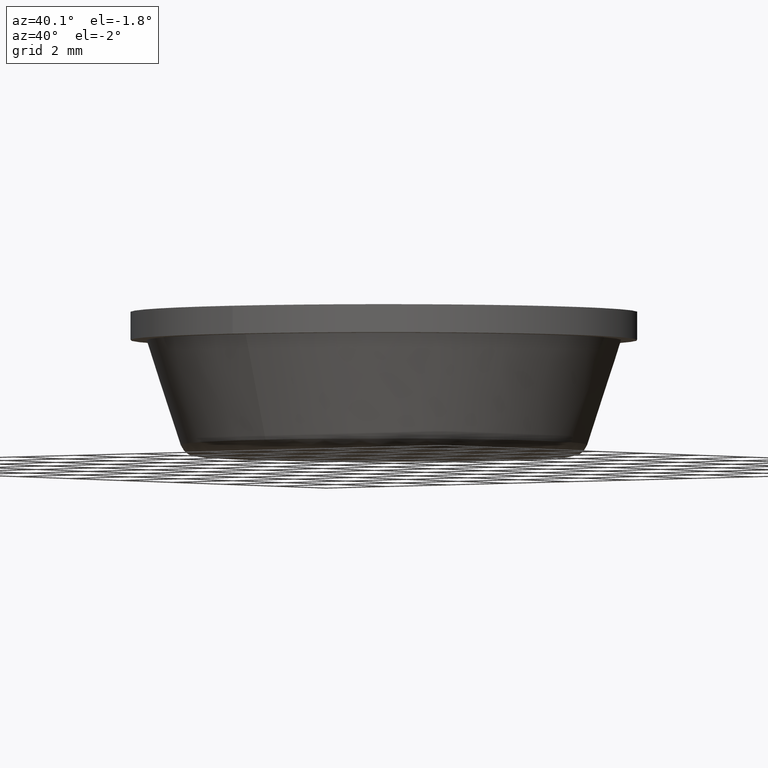
[diagram: clean part render]
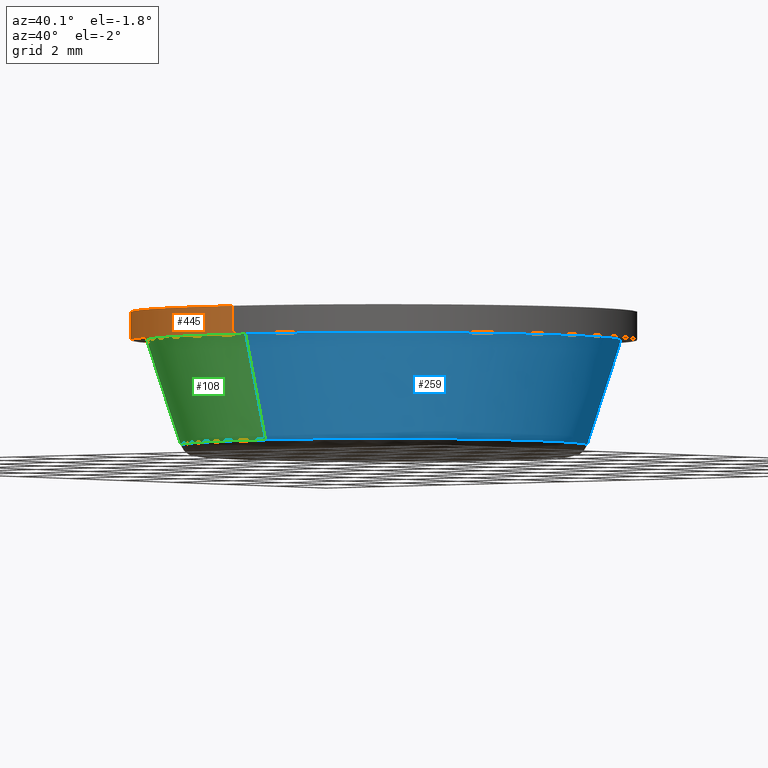
[diagram: same view with three faces highlighted in distinct colors, each labeled with its STEP entity id]
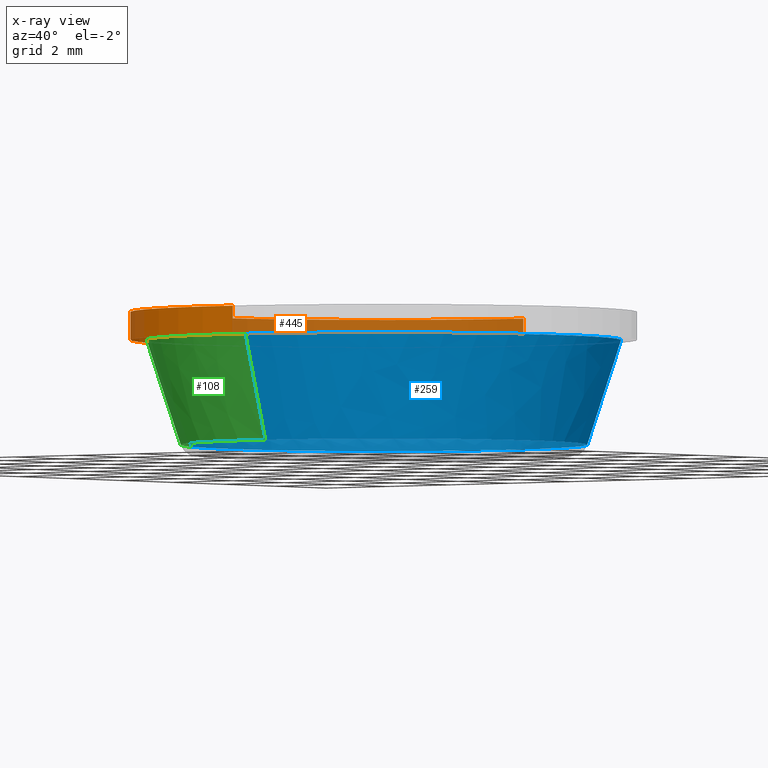
[diagram: x-ray of the same camera — body ghosted, the three highlighted faces saturated]
A machine part, auxiliary view with three faces highlighted in distinct colors.
The next image is the same camera in x-ray (body ghosted, the three faces saturated) — at least one of them is partly hidden behind the body in this view.
Their STEP definitions:

[orange] entity #445 — the highlighted face is a freeform B-spline surface patch.
#282=CARTESIAN_POINT('',(-0.749513374682920,6.305610969696359,2.900000000000056));
#283=VERTEX_POINT('',#282);
#301=CARTESIAN_POINT('',(-0.749513424211019,6.305610963809258,3.600000000000000));
#302=VERTEX_POINT('',#301);
#303=CARTESIAN_POINT('',(-0.749513424211019,6.305610963809258,3.600000000000000));
#304=CARTESIAN_POINT('',(-0.749513374682920,6.305610969696359,2.900000000000056));
#305=QUASI_UNIFORM_CURVE('',1,(#303,#304),.UNSPECIFIED.,.F.,.U.);
#306=EDGE_CURVE('',#302,#283,#305,.T.);
#325=CARTESIAN_POINT('',(0.387655985912206,-6.338156106990533,3.600000000000000));
#326=VERTEX_POINT('',#325);
#340=CARTESIAN_POINT('',(0.387655957948693,-6.338156108700835,2.900000000000037));
#341=VERTEX_POINT('',#340);
#342=CARTESIAN_POINT('',(0.387655985912206,-6.338156106990533,3.600000000000000));
#343=CARTESIAN_POINT('',(0.387655957948693,-6.338156108700835,2.900000000000037));
#344=QUASI_UNIFORM_CURVE('',1,(#342,#343),.UNSPECIFIED.,.F.,.U.);
#345=EDGE_CURVE('',#326,#341,#344,.T.);
#363=CARTESIAN_POINT('',(0.387658226046342,-6.338155969978853,3.617500000000001));
#364=CARTESIAN_POINT('',(-5.950497743932512,-6.725814196025195,3.617500000000000));
#365=CARTESIAN_POINT('',(-6.338155969978853,-0.387658226046342,3.617500000000001));
#366=CARTESIAN_POINT('',(-6.704242349251549,5.597801166830830,3.617500000000001));
#367=CARTESIAN_POINT('',(-0.749517390070416,6.305610492409281,3.617500000000001));
#368=CARTESIAN_POINT('',(0.387658226046342,-6.338155969978853,2.882062500000000));
#369=CARTESIAN_POINT('',(-5.950497743932512,-6.725814196025195,2.882062500000000));
#370=CARTESIAN_POINT('',(-6.338155969978853,-0.387658226046342,2.882062500000000));
#371=CARTESIAN_POINT('',(-6.704242349251549,5.597801166830830,2.882062500000000));
#372=CARTESIAN_POINT('',(-0.749517390070416,6.305610492409281,2.882062500000000));
#380=(BOUNDED_SURFACE()B_SPLINE_SURFACE(2,1,((#363,#368),(#364,#369),(#365,#370),(#366,#371),(#367,#372)),.UNSPECIFIED.,.F.,.F.,.U.)B_SPLINE_SURFACE_WITH_KNOTS((3,2,3),(2,2),(0.0,10.521024484276611,20.621207989182160),(0.0,1.0),.UNSPECIFIED.)GEOMETRIC_REPRESENTATION_ITEM()RATIONAL_B_SPLINE_SURFACE(((1.0,1.0),(0.707106781186548,0.707106781186548),(1.0,1.0),(0.718822509939086,0.718822509939086),(0.977505800795127,0.977505800795127)))REPRESENTATION_ITEM('')SURFACE());
#381=CARTESIAN_POINT('',(-6.350000000000000,0.0,2.900000000000000));
#382=VERTEX_POINT('',#381);
#383=CARTESIAN_POINT('',(-6.350000000000000,0.0,2.900000000000000));
#384=CARTESIAN_POINT('',(-6.350000000000001,5.639911856545724,2.900000000000000));
#385=CARTESIAN_POINT('',(-0.749513374682920,6.305610969696359,2.900000000000056));
#393=(BOUNDED_CURVE()B_SPLINE_CURVE(2,(#383,#384,#385),.UNSPECIFIED.,.F.,.U.)B_SPLINE_CURVE_WITH_KNOTS((3,3),(0.0,0.229562581136241),.UNSPECIFIED.)CURVE()GEOMETRIC_REPRESENTATION_ITEM()RATIONAL_B_SPLINE_CURVE((1.0,0.731050706767529,0.956026965128767))REPRESENTATION_ITEM(''));
#394=EDGE_CURVE('',#382,#283,#393,.T.);
#395=ORIENTED_EDGE('',*,*,#394,.F.);
#396=CARTESIAN_POINT('',(0.387655957948693,-6.338156108700835,2.900000000000037));
#397=CARTESIAN_POINT('',(0.194008909717484,-6.350000000000001,2.900000000000000));
#398=CARTESIAN_POINT('',(0.0,-6.350000000000000,2.900000000000000));
#399=CARTESIAN_POINT('',(-6.350000000000000,-6.350000000000000,2.900000000000001));
#400=CARTESIAN_POINT('',(-6.350000000000000,0.0,2.900000000000000));
#408=(BOUNDED_CURVE()B_SPLINE_CURVE(2,(#396,#397,#398,#399,#400),.UNSPECIFIED.,.F.,.U.)B_SPLINE_CURVE_WITH_KNOTS((3,2,3),(0.739333023987528,0.750000000000000,1.0),.UNSPECIFIED.)CURVE()GEOMETRIC_REPRESENTATION_ITEM()RATIONAL_B_SPLINE_CURVE((0.976072174005725,0.987502860242804,1.0,0.707106781186547,1.0))REPRESENTATION_ITEM(''));
#409=EDGE_CURVE('',#341,#382,#408,.T.);
#410=ORIENTED_EDGE('',*,*,#409,.F.);
#411=ORIENTED_EDGE('',*,*,#345,.F.);
#412=CARTESIAN_POINT('',(-6.350000000000000,0.0,3.600000000000000));
#413=VERTEX_POINT('',#412);
#414=CARTESIAN_POINT('',(0.387655985912206,-6.338156106990533,3.600000000000000));
#415=CARTESIAN_POINT('',(0.194008923738444,-6.350000000000000,3.600000000000000));
#416=CARTESIAN_POINT('',(0.0,-6.350000000000000,3.600000000000000));
#417=CARTESIAN_POINT('',(-6.350000000000000,-6.350000000000000,3.600000000000000));
#418=CARTESIAN_POINT('',(-6.350000000000000,0.0,3.600000000000000));
#426=(BOUNDED_CURVE()B_SPLINE_CURVE(2,(#414,#415,#416,#417,#418),.UNSPECIFIED.,.F.,.U.)B_SPLINE_CURVE_WITH_KNOTS((3,2,3),(0.739333023226263,0.750000000000000,1.0),.UNSPECIFIED.)CURVE()GEOMETRIC_REPRESENTATION_ITEM()RATIONAL_B_SPLINE_CURVE((0.976072172374189,0.987502859350927,1.0,0.707106781186547,1.0))REPRESENTATION_ITEM(''));
#427=EDGE_CURVE('',#326,#413,#426,.T.);
#428=ORIENTED_EDGE('',*,*,#427,.T.);
#429=CARTESIAN_POINT('',(-6.350000000000000,0.0,3.600000000000000));
#430=CARTESIAN_POINT('',(-6.350000000000001,5.639911811934584,3.600000000000001));
#431=CARTESIAN_POINT('',(-0.749513424211019,6.305610963809258,3.600000000000000));
#439=(BOUNDED_CURVE()B_SPLINE_CURVE(2,(#429,#430,#431),.UNSPECIFIED.,.F.,.U.)B_SPLINE_CURVE_WITH_KNOTS((3,3),(0.0,0.229562579808786),.UNSPECIFIED.)CURVE()GEOMETRIC_REPRESENTATION_ITEM()RATIONAL_B_SPLINE_CURVE((1.0,0.731050708322738,0.956026962526900))REPRESENTATION_ITEM(''));
#440=EDGE_CURVE('',#413,#302,#439,.T.);
#441=ORIENTED_EDGE('',*,*,#440,.T.);
#442=ORIENTED_EDGE('',*,*,#306,.T.);
#443=EDGE_LOOP('',(#395,#410,#411,#428,#441,#442));
#444=FACE_OUTER_BOUND('',#443,.T.);
#445=ADVANCED_FACE('',(#444),#380,.T.);

[blue] entity #259 — the highlighted face is a freeform B-spline surface patch.
#58=CARTESIAN_POINT('',(0.466222470442264,-5.923948546619458,2.899998103247859));
#59=VERTEX_POINT('',#58);
#60=CARTESIAN_POINT('',(-5.525502656105997,-2.186174168874863,2.900000000000284));
#61=VERTEX_POINT('',#60);
#77=CARTESIAN_POINT('',(-4.732829137074683,-1.872551593788798,0.276393202250402));
#78=VERTEX_POINT('',#77);
#79=CARTESIAN_POINT('',(-4.732829137074683,-1.872551593788798,0.276393202250402));
#80=CARTESIAN_POINT('',(-5.525502656105997,-2.186174168874863,2.900000000000284));
#81=QUASI_UNIFORM_CURVE('',1,(#79,#80),.UNSPECIFIED.,.F.,.U.);
#82=EDGE_CURVE('',#78,#61,#81,.T.);
#84=CARTESIAN_POINT('',(0.399341545321534,-5.074115434469849,0.276393202250665));
#85=VERTEX_POINT('',#84);
#101=CARTESIAN_POINT('',(0.399341545321534,-5.074115434469849,0.276393202250665));
#102=CARTESIAN_POINT('',(0.466222470442264,-5.923948546619458,2.899998103247859));
#103=QUASI_UNIFORM_CURVE('',1,(#101,#102),.UNSPECIFIED.,.F.,.U.);
#104=EDGE_CURVE('',#85,#59,#103,.T.);
#109=CARTESIAN_POINT('',(0.397669461565919,-5.052869595980917,0.210803032301656));
#110=CARTESIAN_POINT('',(5.450539057546835,-4.655200134414998,0.210803032301656));
#111=CARTESIAN_POINT('',(5.052869595980917,0.397669461565919,0.210803032301656));
#112=CARTESIAN_POINT('',(4.655200134414998,5.450539057546835,0.210803032301656));
#113=CARTESIAN_POINT('',(-0.397669461565919,5.052869595980917,0.210803032301656));
#114=CARTESIAN_POINT('',(-5.450539057546835,4.655200134414998,0.210803032301656));
#115=CARTESIAN_POINT('',(-5.052869595980917,-0.397669461565919,0.210803032301656));
#116=CARTESIAN_POINT('',(-4.993131250110380,-1.156717114797357,0.210803032301656));
#117=CARTESIAN_POINT('',(-4.713012299098148,-1.864711029409133,0.210803032301656));
#118=CARTESIAN_POINT('',(0.467938781239102,-5.945725958420095,2.967229924192459));
#119=CARTESIAN_POINT('',(6.413664739659197,-5.477787177180994,2.967229924192458));
#120=CARTESIAN_POINT('',(5.945725958420095,0.467938781239102,2.967229924192459));
#121=CARTESIAN_POINT('',(5.477787177180994,6.413664739659197,2.967229924192458));
#122=CARTESIAN_POINT('',(-0.467938781239102,5.945725958420095,2.967229924192459));
#123=CARTESIAN_POINT('',(-6.413664739659197,5.477787177180994,2.967229924192458));
#124=CARTESIAN_POINT('',(-5.945725958420095,-0.467938781239102,2.967229924192459));
#125=CARTESIAN_POINT('',(-5.875431677713140,-1.361112303683804,2.967229924192459));
#126=CARTESIAN_POINT('',(-5.545814915031673,-2.194210747360045,2.967229924192459));
#134=(BOUNDED_SURFACE()B_SPLINE_SURFACE(2,1,((#109,#118),(#110,#119),(#111,#120),(#112,#121),(#113,#122),(#114,#123),(#115,#124),(#116,#125),(#117,#126)),.UNSPECIFIED.,.F.,.F.,.U.)B_SPLINE_SURFACE_WITH_KNOTS((3,2,2,2,3),(2,2),(0.0,9.881663190302827,19.763326380605658,29.644989570908479,31.621322208969051),(0.0,2.898278708401635),.UNSPECIFIED.)GEOMETRIC_REPRESENTATION_ITEM()RATIONAL_B_SPLINE_SURFACE(((1.0,1.0),(0.707106781186548,0.707106781186548),(1.0,1.0),(0.707106781186548,0.707106781186548),(1.0,1.0),(0.707106781186548,0.707106781186548),(1.0,1.0),(0.941421356237310,0.941421356237310),(0.906274169979695,0.906274169979695)))REPRESENTATION_ITEM('')SURFACE());
#135=CARTESIAN_POINT('',(-5.942267000000000,0.0,2.900000000000000));
#136=VERTEX_POINT('',#135);
#137=CARTESIAN_POINT('',(-5.525502656105997,-2.186174168874862,2.900000000000284));
#138=CARTESIAN_POINT('',(-5.942267000000001,-1.132812308716836,2.900000000000000));
#139=CARTESIAN_POINT('',(-5.942267000000000,0.0,2.900000000000000));
#147=(BOUNDED_CURVE()B_SPLINE_CURVE(2,(#137,#138,#139),.UNSPECIFIED.,.F.,.U.)B_SPLINE_CURVE_WITH_KNOTS((3,3),(0.937532549939383,1.0),.UNSPECIFIED.)CURVE()GEOMETRIC_REPRESENTATION_ITEM()RATIONAL_B_SPLINE_CURVE((0.890203187501265,0.926814829922709,1.0))REPRESENTATION_ITEM(''));
#148=EDGE_CURVE('',#61,#136,#147,.T.);
#149=ORIENTED_EDGE('',*,*,#148,.T.);
#150=CARTESIAN_POINT('',(5.942267000000000,0.0,2.900000000000000));
#151=VERTEX_POINT('',#150);
#152=CARTESIAN_POINT('',(-5.942267000000000,0.0,2.900000000000000));
#153=CARTESIAN_POINT('',(-5.942267000000001,5.942267000000001,2.900000000000000));
#154=CARTESIAN_POINT('',(0.0,5.942267000000000,2.900000000000000));
#155=CARTESIAN_POINT('',(5.942267000000001,5.942267000000001,2.900000000000000));
#156=CARTESIAN_POINT('',(5.942267000000000,0.0,2.900000000000000));
#164=(BOUNDED_CURVE()B_SPLINE_CURVE(2,(#152,#153,#154,#155,#156),.UNSPECIFIED.,.F.,.U.)B_SPLINE_CURVE_WITH_KNOTS((3,2,3),(0.0,0.250000000000000,0.500000000000000),.UNSPECIFIED.)CURVE()GEOMETRIC_REPRESENTATION_ITEM()RATIONAL_B_SPLINE_CURVE((1.0,0.707106781186548,1.0,0.707106781186548,1.0))REPRESENTATION_ITEM(''));
#165=EDGE_CURVE('',#136,#151,#164,.T.);
#166=ORIENTED_EDGE('',*,*,#165,.T.);
#167=CARTESIAN_POINT('',(5.942267000000000,0.0,2.900000000000000));
#168=CARTESIAN_POINT('',(5.942266975823248,-5.492977017010159,2.899999051623929));
#169=CARTESIAN_POINT('',(0.466222470442264,-5.923948546619459,2.899998103247860));
#177=(BOUNDED_CURVE()B_SPLINE_CURVE(2,(#167,#168,#169),.UNSPECIFIED.,.F.,.U.)B_SPLINE_CURVE_WITH_KNOTS((3,3),(0.500000000000000,0.736331369405652),.UNSPECIFIED.)CURVE()GEOMETRIC_REPRESENTATION_ITEM()RATIONAL_B_SPLINE_CURVE((1.0,0.723120578032750,0.969723499695625))REPRESENTATION_ITEM(''));
#178=EDGE_CURVE('',#151,#59,#177,.T.);
#179=ORIENTED_EDGE('',*,*,#178,.T.);
#180=ORIENTED_EDGE('',*,*,#104,.F.);
#181=CARTESIAN_POINT('',(5.089805606518071,0.0,0.276393202250013));
#182=VERTEX_POINT('',#181);
#183=CARTESIAN_POINT('',(5.089805606518071,0.0,0.276393202250013));
#184=CARTESIAN_POINT('',(5.089805606518071,-4.704967907047252,0.276393202250012));
#185=CARTESIAN_POINT('',(0.399341545321534,-5.074115434469849,0.276393202250665));
#193=(BOUNDED_CURVE()B_SPLINE_CURVE(2,(#183,#184,#185),.UNSPECIFIED.,.F.,.U.)B_SPLINE_CURVE_WITH_KNOTS((3,3),(0.500000000000000,0.736331300632524),.UNSPECIFIED.)CURVE()GEOMETRIC_REPRESENTATION_ITEM()RATIONAL_B_SPLINE_CURVE((1.0,0.723120658605481,0.969723356171309))REPRESENTATION_ITEM(''));
#194=EDGE_CURVE('',#182,#85,#193,.T.);
#195=ORIENTED_EDGE('',*,*,#194,.F.);
#196=CARTESIAN_POINT('',(0.877675751714208,5.013562245248458,0.276393202245518));
#197=VERTEX_POINT('',#196);
#198=CARTESIAN_POINT('',(0.877675751714208,5.013562245248458,0.276393202245518));
#199=CARTESIAN_POINT('',(5.089805606518071,4.276185494786597,0.276393202250013));
#200=CARTESIAN_POINT('',(5.089805606518071,0.0,0.276393202250013));
#208=(BOUNDED_CURVE()B_SPLINE_CURVE(2,(#198,#199,#200),.UNSPECIFIED.,.F.,.U.)B_SPLINE_CURVE_WITH_KNOTS((3,3),(0.279646299375439,0.500000000000000),.UNSPECIFIED.)CURVE()GEOMETRIC_REPRESENTATION_ITEM()RATIONAL_B_SPLINE_CURVE((0.938771991543156,0.741839581386466,1.0))REPRESENTATION_ITEM(''));
#209=EDGE_CURVE('',#197,#182,#208,.T.);
#210=ORIENTED_EDGE('',*,*,#209,.F.);
#211=CARTESIAN_POINT('',(-4.878690106847490,1.450691141708440,0.276393454745976));
#212=VERTEX_POINT('',#211);
#213=CARTESIAN_POINT('',(-4.878690106847490,1.450691141708439,0.276393454745976));
#214=CARTESIAN_POINT('',(-3.796589907877530,5.089805606518072,0.276393202250013));
#215=CARTESIAN_POINT('',(0.0,5.089805606518071,0.276393202250013));
#216=CARTESIAN_POINT('',(0.442149491866362,5.089805606518071,0.276393202250013));
#217=CARTESIAN_POINT('',(0.877675751714208,5.013562245248458,0.276393202245518));
#225=(BOUNDED_CURVE()B_SPLINE_CURVE(2,(#213,#214,#215,#216,#217),.UNSPECIFIED.,.F.,.U.)B_SPLINE_CURVE_WITH_KNOTS((3,2,3),(0.048526611977056,0.250000000000000,0.279646299375439),.UNSPECIFIED.)CURVE()GEOMETRIC_REPRESENTATION_ITEM()RATIONAL_B_SPLINE_CURVE((0.908365934391083,0.763959243506833,1.0,0.965267199800082,0.938771991543156))REPRESENTATION_ITEM(''));
#226=EDGE_CURVE('',#212,#197,#225,.T.);
#227=ORIENTED_EDGE('',*,*,#226,.F.);
#228=CARTESIAN_POINT('',(-5.089805606518071,0.0,0.276393202250013));
#229=VERTEX_POINT('',#228);
#230=CARTESIAN_POINT('',(-5.089805606518071,0.0,0.276393202250013));
#231=CARTESIAN_POINT('',(-5.089805606518071,0.740707129534679,0.276393202250013));
#232=CARTESIAN_POINT('',(-4.878690106847490,1.450691141708439,0.276393454745976));
#240=(BOUNDED_CURVE()B_SPLINE_CURVE(2,(#230,#231,#232),.UNSPECIFIED.,.F.,.U.)B_SPLINE_CURVE_WITH_KNOTS((3,3),(0.0,0.048526611977056),.UNSPECIFIED.)CURVE()GEOMETRIC_REPRESENTATION_ITEM()RATIONAL_B_SPLINE_CURVE((1.0,0.943147537679714,0.908365934391083))REPRESENTATION_ITEM(''));
#241=EDGE_CURVE('',#229,#212,#240,.T.);
#242=ORIENTED_EDGE('',*,*,#241,.F.);
#243=CARTESIAN_POINT('',(-4.732829137074683,-1.872551593788799,0.276393202250402));
#244=CARTESIAN_POINT('',(-5.089805606518071,-0.970302149002113,0.276393202250013));
#245=CARTESIAN_POINT('',(-5.089805606518071,0.0,0.276393202250013));
#253=(BOUNDED_CURVE()B_SPLINE_CURVE(2,(#243,#244,#245),.UNSPECIFIED.,.F.,.U.)B_SPLINE_CURVE_WITH_KNOTS((3,3),(0.937532549939335,1.0),.UNSPECIFIED.)CURVE()GEOMETRIC_REPRESENTATION_ITEM()RATIONAL_B_SPLINE_CURVE((0.890203187501210,0.926814829922653,1.0))REPRESENTATION_ITEM(''));
#254=EDGE_CURVE('',#78,#229,#253,.T.);
#255=ORIENTED_EDGE('',*,*,#254,.F.);
#256=ORIENTED_EDGE('',*,*,#82,.T.);
#257=EDGE_LOOP('',(#149,#166,#179,#180,#195,#210,#227,#242,#255,#256));
#258=FACE_OUTER_BOUND('',#257,.T.);
#259=ADVANCED_FACE('',(#258),#134,.T.);

[green] entity #108 — the highlighted face is a freeform B-spline surface patch.
#44=CARTESIAN_POINT('',(-4.713012299098148,-1.864711029409133,0.210803032301656));
#45=CARTESIAN_POINT('',(-3.335371016258308,-5.346666253231072,0.210803032301656));
#46=CARTESIAN_POINT('',(0.397669461565919,-5.052869595980917,0.210803032301656));
#47=CARTESIAN_POINT('',(-5.545814915031673,-2.194210747360045,2.967229924192459));
#48=CARTESIAN_POINT('',(-3.924740517369158,-6.291437316753732,2.967229924192459));
#49=CARTESIAN_POINT('',(0.467938781239102,-5.945725958420095,2.967229924192459));
#57=(BOUNDED_SURFACE()B_SPLINE_SURFACE(2,1,((#44,#47),(#45,#48),(#46,#49)),.UNSPECIFIED.,.F.,.F.,.U.)B_SPLINE_SURFACE_WITH_KNOTS((3,3),(2,2),(0.0,7.851446740555091),(0.0,2.898278708401635),.UNSPECIFIED.)GEOMETRIC_REPRESENTATION_ITEM()RATIONAL_B_SPLINE_SURFACE(((0.906274169979695,0.906274169979695),(0.765685424949238,0.765685424949238),(1.0,1.0)))REPRESENTATION_ITEM('')SURFACE());
#58=CARTESIAN_POINT('',(0.466222470442264,-5.923948546619458,2.899998103247859));
#59=VERTEX_POINT('',#58);
#60=CARTESIAN_POINT('',(-5.525502656105997,-2.186174168874863,2.900000000000284));
#61=VERTEX_POINT('',#60);
#62=CARTESIAN_POINT('',(0.466222470442264,-5.923948546619459,2.899998103247860));
#63=CARTESIAN_POINT('',(0.233471065417052,-5.942266401944268,2.899998153683463));
#64=CARTESIAN_POINT('',(-0.000000045711487,-5.942266419177854,2.899998206887088));
#65=CARTESIAN_POINT('',(-4.039398402529002,-5.942266717344607,2.899999127389149));
#66=CARTESIAN_POINT('',(-5.525502656105997,-2.186174168874862,2.900000000000284));
#74=(BOUNDED_CURVE()B_SPLINE_CURVE(2,(#62,#63,#64,#65,#66),.UNSPECIFIED.,.F.,.U.)B_SPLINE_CURVE_WITH_KNOTS((3,2,3),(0.736331369405652,0.750000000000000,0.937532549939383),.UNSPECIFIED.)CURVE()GEOMETRIC_REPRESENTATION_ITEM()RATIONAL_B_SPLINE_CURVE((0.969723499695625,0.983986203153798,1.0,0.780291951263839,0.890203187501265))REPRESENTATION_ITEM(''));
#75=EDGE_CURVE('',#59,#61,#74,.T.);
#76=ORIENTED_EDGE('',*,*,#75,.T.);
#77=CARTESIAN_POINT('',(-4.732829137074683,-1.872551593788798,0.276393202250402));
#78=VERTEX_POINT('',#77);
#79=CARTESIAN_POINT('',(-4.732829137074683,-1.872551593788798,0.276393202250402));
#80=CARTESIAN_POINT('',(-5.525502656105997,-2.186174168874863,2.900000000000284));
#81=QUASI_UNIFORM_CURVE('',1,(#79,#80),.UNSPECIFIED.,.F.,.U.);
#82=EDGE_CURVE('',#78,#61,#81,.T.);
#83=ORIENTED_EDGE('',*,*,#82,.F.);
#84=CARTESIAN_POINT('',(0.399341545321534,-5.074115434469849,0.276393202250665));
#85=VERTEX_POINT('',#84);
#86=CARTESIAN_POINT('',(0.399341545321534,-5.074115434469849,0.276393202250665));
#87=CARTESIAN_POINT('',(0.199979006931943,-5.089805606518070,0.276393202250013));
#88=CARTESIAN_POINT('',(0.0,-5.089805606518071,0.276393202250013));
#89=CARTESIAN_POINT('',(-3.459917321607990,-5.089805606518072,0.276393202250013));
#90=CARTESIAN_POINT('',(-4.732829137074683,-1.872551593788798,0.276393202250402));
#98=(BOUNDED_CURVE()B_SPLINE_CURVE(2,(#86,#87,#88,#89,#90),.UNSPECIFIED.,.F.,.U.)B_SPLINE_CURVE_WITH_KNOTS((3,2,3),(0.736331300632524,0.750000000000000,0.937532549939335),.UNSPECIFIED.)CURVE()GEOMETRIC_REPRESENTATION_ITEM()RATIONAL_B_SPLINE_CURVE((0.969723356171309,0.983986122581066,1.0,0.780291951263895,0.890203187501209))REPRESENTATION_ITEM(''));
#99=EDGE_CURVE('',#85,#78,#98,.T.);
#100=ORIENTED_EDGE('',*,*,#99,.F.);
#101=CARTESIAN_POINT('',(0.399341545321534,-5.074115434469849,0.276393202250665));
#102=CARTESIAN_POINT('',(0.466222470442264,-5.923948546619458,2.899998103247859));
#103=QUASI_UNIFORM_CURVE('',1,(#101,#102),.UNSPECIFIED.,.F.,.U.);
#104=EDGE_CURVE('',#85,#59,#103,.T.);
#105=ORIENTED_EDGE('',*,*,#104,.T.);
#106=EDGE_LOOP('',(#76,#83,#100,#105));
#107=FACE_OUTER_BOUND('',#106,.T.);
#108=ADVANCED_FACE('',(#107),#57,.T.);